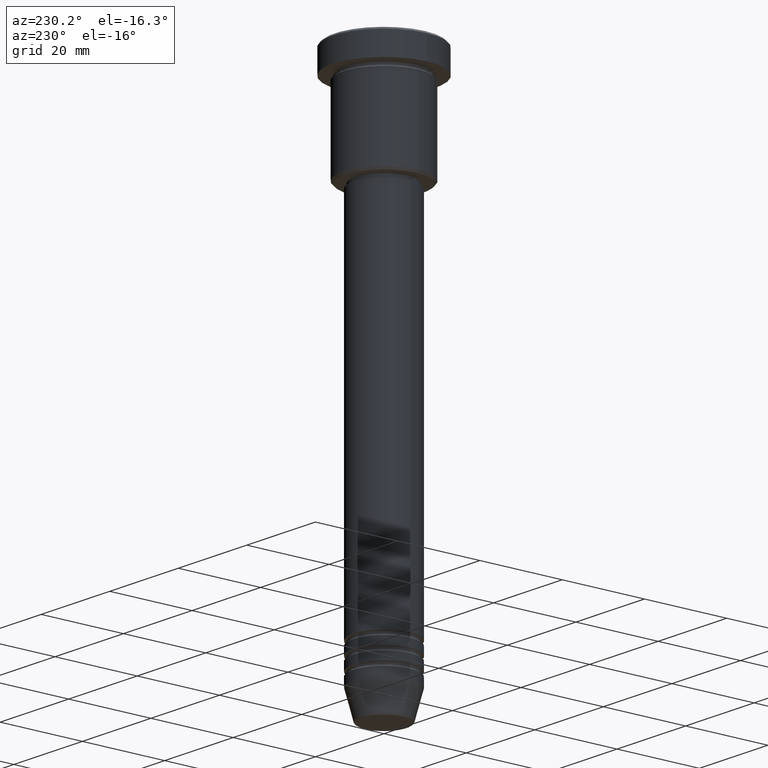
[diagram: clean part render]
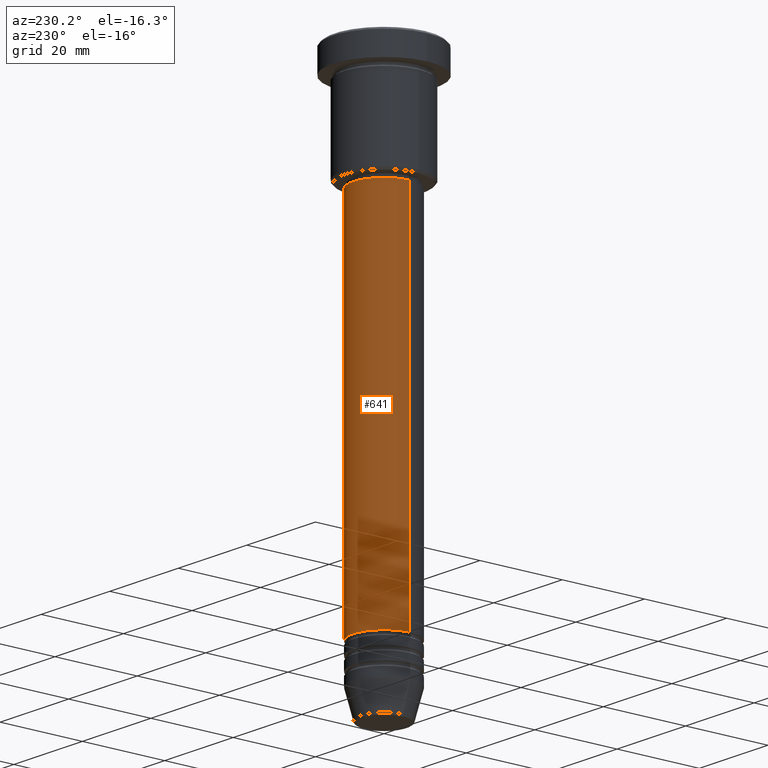
[diagram: same view with one face highlighted and labeled with its STEP entity id]
A machine part, auxiliary view. The second image highlights one B-rep face of the part: STEP entity #641.
In plain terms, the highlighted cylindrical surface (partial cylindrical patch) has radius 7.5 mm, axis along (-0, -0, 1).
Its self-contained STEP definition (entity closure, byte-faithful):
#14 = ORIENTED_EDGE ( 'NONE', *, *, #594, .F. ) ;
#32 = EDGE_CURVE ( 'NONE', #767, #326, #454, .T. ) ;
#67 = EDGE_LOOP ( 'NONE', ( #595, #153, #565, #14 ) ) ;
#81 = LINE ( 'NONE', #166, #533 ) ;
#124 = DIRECTION ( 'NONE',  ( -0.000000000000000000, -0.000000000000000000, 1.000000000000000000 ) ) ;
#153 = ORIENTED_EDGE ( 'NONE', *, *, #32, .T. ) ;
#166 = CARTESIAN_POINT ( 'NONE',  ( 7.500000000000000000, 0.000000000000000000, 0.000000000000000000 ) ) ;
#183 = DIRECTION ( 'NONE',  ( 1.000000000000000000, 0.000000000000000000, 0.000000000000000000 ) ) ;
#225 = VERTEX_POINT ( 'NONE', #658 ) ;
#263 = DIRECTION ( 'NONE',  ( -0.000000000000000000, -0.000000000000000000, 1.000000000000000000 ) ) ;
#275 = CIRCLE ( 'NONE', #422, 7.500000000000000000 ) ;
#326 = VERTEX_POINT ( 'NONE', #944 ) ;
#374 = DIRECTION ( 'NONE',  ( 1.000000000000000000, 0.000000000000000000, 0.000000000000000000 ) ) ;
#398 = CARTESIAN_POINT ( 'NONE',  ( -7.500000000000000000, 9.184850993605147944E-16, -115.9999999999999574 ) ) ;
#402 = CIRCLE ( 'NONE', #882, 7.500000000000000000 ) ;
#422 = AXIS2_PLACEMENT_3D ( 'NONE', #1113, #124, #848 ) ;
#454 = LINE ( 'NONE', #627, #609 ) ;
#523 = FACE_OUTER_BOUND ( 'NONE', #67, .T. ) ;
#533 = VECTOR ( 'NONE', #733, 1000.000000000000000 ) ;
#546 = CYLINDRICAL_SURFACE ( 'NONE', #686, 7.500000000000000000 ) ;
#565 = ORIENTED_EDGE ( 'NONE', *, *, #598, .F. ) ;
#594 = EDGE_CURVE ( 'NONE', #625, #225, #81, .T. ) ;
#595 = ORIENTED_EDGE ( 'NONE', *, *, #753, .T. ) ;
#598 = EDGE_CURVE ( 'NONE', #225, #326, #402, .T. ) ;
#609 = VECTOR ( 'NONE', #727, 1000.000000000000000 ) ;
#615 = CARTESIAN_POINT ( 'NONE',  ( 0.000000000000000000, 0.000000000000000000, 0.000000000000000000 ) ) ;
#625 = VERTEX_POINT ( 'NONE', #716 ) ;
#627 = CARTESIAN_POINT ( 'NONE',  ( -7.500000000000000000, 9.184850993605147944E-16, 0.000000000000000000 ) ) ;
#641 = ADVANCED_FACE ( 'NONE', ( #523 ), #546, .T. ) ;
#658 = CARTESIAN_POINT ( 'NONE',  ( 7.500000000000000000, 0.000000000000000000, -28.00000000000000355 ) ) ;
#686 = AXIS2_PLACEMENT_3D ( 'NONE', #615, #1088, #374 ) ;
#716 = CARTESIAN_POINT ( 'NONE',  ( 7.500000000000000000, 0.000000000000000000, -115.9999999999999574 ) ) ;
#727 = DIRECTION ( 'NONE',  ( -0.000000000000000000, -0.000000000000000000, 1.000000000000000000 ) ) ;
#733 = DIRECTION ( 'NONE',  ( -0.000000000000000000, -0.000000000000000000, 1.000000000000000000 ) ) ;
#753 = EDGE_CURVE ( 'NONE', #625, #767, #275, .T. ) ;
#767 = VERTEX_POINT ( 'NONE', #398 ) ;
#806 = CARTESIAN_POINT ( 'NONE',  ( 0.000000000000000000, 0.000000000000000000, -28.00000000000000355 ) ) ;
#848 = DIRECTION ( 'NONE',  ( 1.000000000000000000, 0.000000000000000000, 0.000000000000000000 ) ) ;
#882 = AXIS2_PLACEMENT_3D ( 'NONE', #806, #263, #183 ) ;
#944 = CARTESIAN_POINT ( 'NONE',  ( -7.500000000000000000, 9.184850993605147944E-16, -28.00000000000000355 ) ) ;
#1088 = DIRECTION ( 'NONE',  ( -0.000000000000000000, -0.000000000000000000, 1.000000000000000000 ) ) ;
#1113 = CARTESIAN_POINT ( 'NONE',  ( 0.000000000000000000, 0.000000000000000000, -115.9999999999999574 ) ) ;